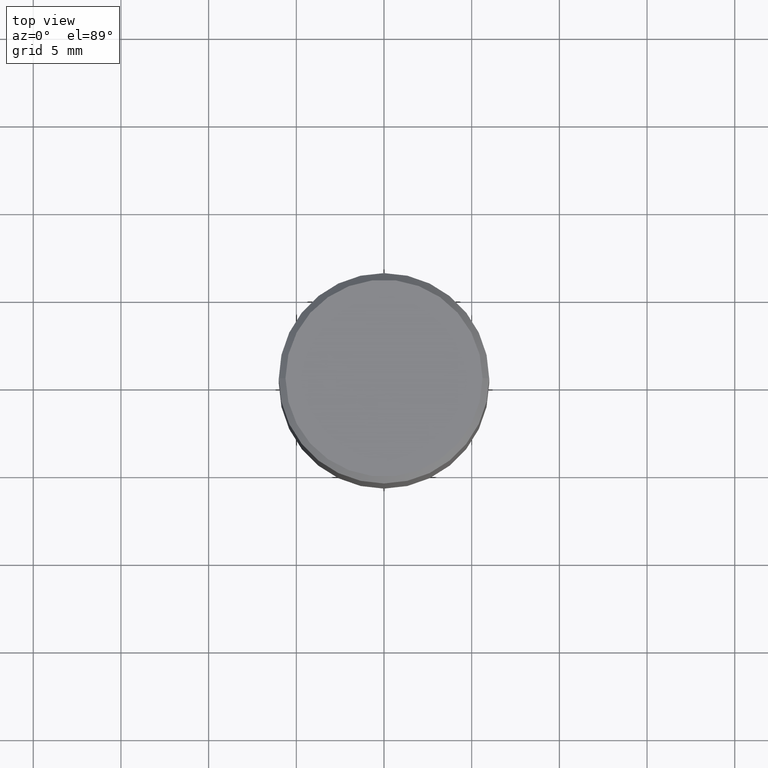
[diagram: clean part render]
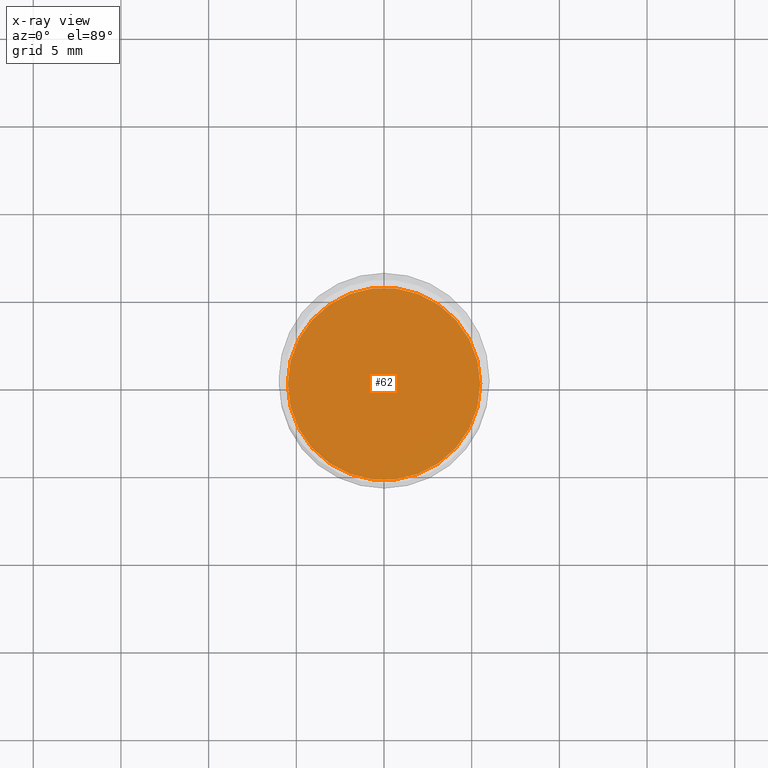
[diagram: x-ray — body ghosted, one internal face saturated and labeled with its STEP entity id]
A machine part, top view, then the same camera in x-ray: the body is ghosted and one INTERNAL B-rep face — a face not visible from any outside direction — is saturated and labeled: STEP entity #62.
In plain terms, the highlighted planar face has unit normal (-0, 0, 1).
Its self-contained STEP definition (entity closure, byte-faithful):
#15 = CARTESIAN_POINT ( 'NONE',  ( 0.2160500000000000198, -4.134263053324163313E-15, -0.7519999999999998908 ) ) ;
#18 = DIRECTION ( 'NONE',  ( 1.000000000000000000, -6.982962677686266711E-15, 0.000000000000000000 ) ) ;
#20 = EDGE_LOOP ( 'NONE', ( #74, #349 ) ) ;
#24 = DIRECTION ( 'NONE',  ( -2.445468806185136597E-29, 3.491481338843145583E-15, 1.000000000000000000 ) ) ;
#31 = DIRECTION ( 'NONE',  ( 1.000000000000000000, -6.982962677686265922E-15, 4.876176775795935793E-29 ) ) ;
#45 = EDGE_CURVE ( 'NONE', #288, #167, #221, .T. ) ;
#59 = CIRCLE ( 'NONE', #343, 0.2160500000000000198 ) ;
#62 = ADVANCED_FACE ( 'NONE', ( #251 ), #78, .F. ) ;
#74 = ORIENTED_EDGE ( 'NONE', *, *, #45, .F. ) ;
#78 = PLANE ( 'NONE',  #351 ) ;
#132 = AXIS2_PLACEMENT_3D ( 'NONE', #260, #24, #18 ) ;
#134 = CARTESIAN_POINT ( 'NONE',  ( 1.838992542251222532E-29, -2.625593966810045103E-15, -0.7519999999999998908 ) ) ;
#136 = CARTESIAN_POINT ( 'NONE',  ( -0.2160500000000000198, -1.087817159026237112E-15, -0.7519999999999998908 ) ) ;
#167 = VERTEX_POINT ( 'NONE', #136 ) ;
#172 = CARTESIAN_POINT ( 'NONE',  ( 1.838992542251222813E-29, -2.625593966810045497E-15, -0.7520000000000001128 ) ) ;
#221 = CIRCLE ( 'NONE', #132, 0.2160500000000000198 ) ;
#232 = DIRECTION ( 'NONE',  ( 1.000000000000000000, -6.982962677686266711E-15, 0.000000000000000000 ) ) ;
#251 = FACE_OUTER_BOUND ( 'NONE', #20, .T. ) ;
#260 = CARTESIAN_POINT ( 'NONE',  ( 1.838992542251222532E-29, -2.625593966810045103E-15, -0.7519999999999998908 ) ) ;
#288 = VERTEX_POINT ( 'NONE', #15 ) ;
#326 = DIRECTION ( 'NONE',  ( -2.438088387897960049E-29, 3.491481338843145188E-15, 1.000000000000000000 ) ) ;
#343 = AXIS2_PLACEMENT_3D ( 'NONE', #134, #456, #232 ) ;
#349 = ORIENTED_EDGE ( 'NONE', *, *, #436, .F. ) ;
#351 = AXIS2_PLACEMENT_3D ( 'NONE', #172, #326, #31 ) ;
#436 = EDGE_CURVE ( 'NONE', #167, #288, #59, .T. ) ;
#456 = DIRECTION ( 'NONE',  ( -2.445468806185136597E-29, 3.491481338843145583E-15, 1.000000000000000000 ) ) ;